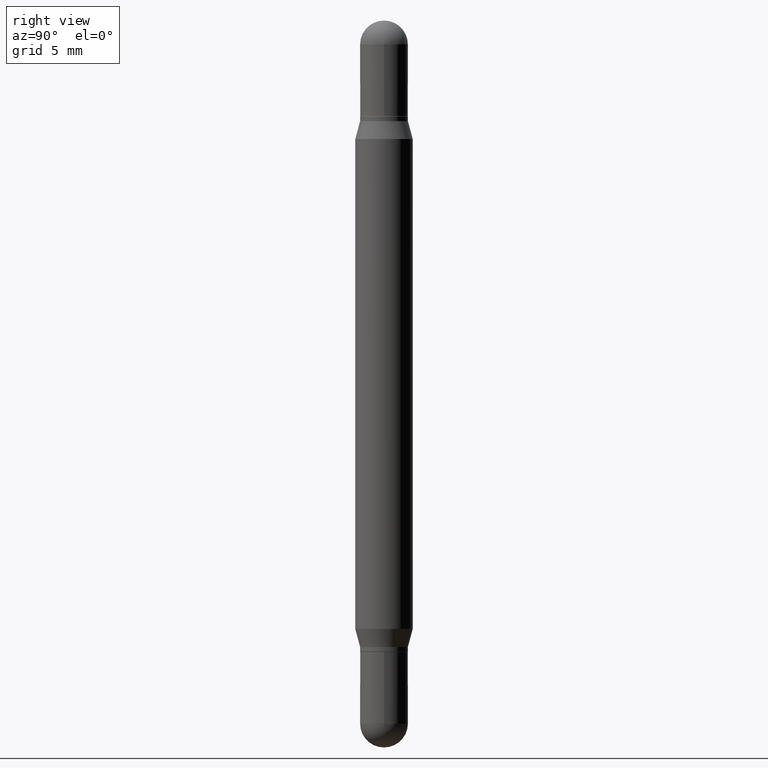
[diagram: clean part render]
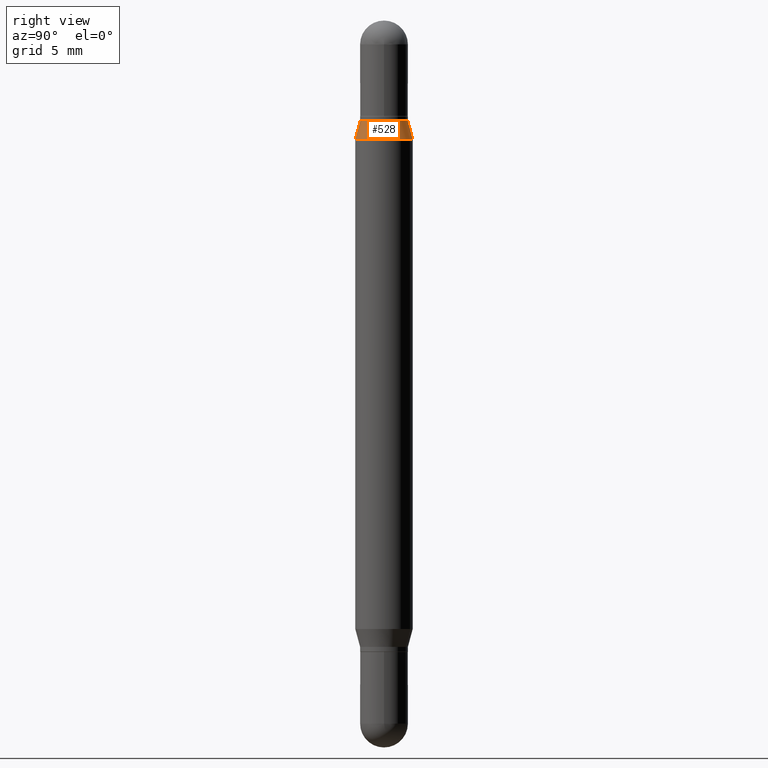
[diagram: same view with one face highlighted and labeled with its STEP entity id]
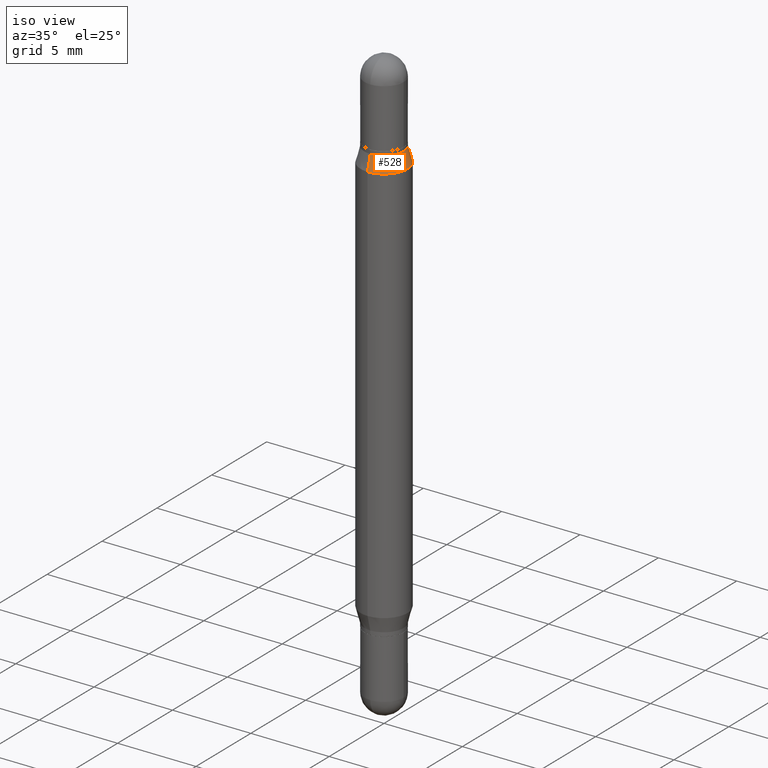
[diagram: same view with one face highlighted and labeled with its STEP entity id]
A machine part, right view. The second image highlights one B-rep face of the part: STEP entity #528.
A second angle (iso view) of the same face is appended — the face is thin or edge-on in the first view.
In plain terms, the highlighted conical surface has half-angle 15 deg.
Its self-contained STEP definition (entity closure, byte-faithful):
#35 = ORIENTED_EDGE ( 'NONE', *, *, #745, .T. ) ;
#50 = CARTESIAN_POINT ( 'NONE',  ( -3.435617637421321808E-16, -0.04920000000000063906, -0.2069999999999998230 ) ) ;
#53 = CIRCLE ( 'NONE', #654, 0.04919999999999991741 ) ;
#105 = CARTESIAN_POINT ( 'NONE',  ( 3.063020011328943986E-29, -8.564067733425325714E-16, -0.2437607004545535860 ) ) ;
#169 = LINE ( 'NONE', #682, #1084 ) ;
#170 = VERTEX_POINT ( 'NONE', #999 ) ;
#188 = VERTEX_POINT ( 'NONE', #379 ) ;
#201 = DIRECTION ( 'NONE',  ( 2.445838769445875239E-29, 3.480144275424207392E-15, 1.000000000000000000 ) ) ;
#264 = VERTEX_POINT ( 'NONE', #501 ) ;
#291 = DIRECTION ( 'NONE',  ( -2.445838769445875239E-29, -3.480144275424207392E-15, -1.000000000000000000 ) ) ;
#313 = CONICAL_SURFACE ( 'NONE', #938, 0.04919999999999991741, 0.2617993877991506291 ) ;
#315 = VECTOR ( 'NONE', #730, 39.37007874015748143 ) ;
#317 = LINE ( 'NONE', #50, #315 ) ;
#379 = CARTESIAN_POINT ( 'NONE',  ( -4.123439461173433657E-16, -0.05905000000000085181, -0.2437607004545533640 ) ) ;
#383 = DIRECTION ( 'NONE',  ( -6.982962677686266711E-15, -1.000000000000000000, 3.470335357805218124E-15 ) ) ;
#501 = CARTESIAN_POINT ( 'NONE',  ( 4.051124067684395352E-16, 0.05904999999999914484, -0.2437607004545537803 ) ) ;
#518 = EDGE_CURVE ( 'NONE', #737, #170, #53, .T. ) ;
#528 = ADVANCED_FACE ( 'NONE', ( #720 ), #313, .T. ) ;
#541 = DIRECTION ( 'NONE',  ( -6.982962677686265922E-15, -1.000000000000000000, 3.469747663417777397E-15 ) ) ;
#562 = CARTESIAN_POINT ( 'NONE',  ( -3.435617637421321808E-16, -0.04920000000000063906, -0.2069999999999998230 ) ) ;
#626 = DIRECTION ( 'NONE',  ( 2.445838769445875239E-29, 3.480144275424207392E-15, 1.000000000000000000 ) ) ;
#637 = DIRECTION ( 'NONE',  ( -6.982962677686266711E-15, -1.000000000000000000, 3.470335357805218124E-15 ) ) ;
#654 = AXIS2_PLACEMENT_3D ( 'NONE', #968, #201, #383 ) ;
#657 = ORIENTED_EDGE ( 'NONE', *, *, #1024, .T. ) ;
#682 = CARTESIAN_POINT ( 'NONE',  ( 3.375365014903902710E-16, 0.04919999999999918883, -0.2070000000000001839 ) ) ;
#720 = FACE_OUTER_BOUND ( 'NONE', #1073, .T. ) ;
#730 = DIRECTION ( 'NONE',  ( -1.807323732225332506E-15, -0.2588190451025252914, -0.9659258262890670910 ) ) ;
#737 = VERTEX_POINT ( 'NONE', #562 ) ;
#745 = EDGE_CURVE ( 'NONE', #737, #188, #317, .T. ) ;
#788 = ORIENTED_EDGE ( 'NONE', *, *, #849, .F. ) ;
#849 = EDGE_CURVE ( 'NONE', #170, #264, #169, .T. ) ;
#889 = ORIENTED_EDGE ( 'NONE', *, *, #518, .F. ) ;
#925 = AXIS2_PLACEMENT_3D ( 'NONE', #105, #626, #541 ) ;
#938 = AXIS2_PLACEMENT_3D ( 'NONE', #1063, #291, #637 ) ;
#968 = CARTESIAN_POINT ( 'NONE',  ( 3.152930757692677619E-29, -7.284742320950346152E-16, -0.2070000000000000173 ) ) ;
#994 = CIRCLE ( 'NONE', #925, 0.05904999999999999832 ) ;
#999 = CARTESIAN_POINT ( 'NONE',  ( 3.375365014903904189E-16, 0.04919999999999918883, -0.2070000000000001839 ) ) ;
#1017 = DIRECTION ( 'NONE',  ( 1.775627540710967469E-15, 0.2588190451025185190, -0.9659258262890689783 ) ) ;
#1024 = EDGE_CURVE ( 'NONE', #188, #264, #994, .T. ) ;
#1063 = CARTESIAN_POINT ( 'NONE',  ( 3.152930757692677619E-29, -7.284742320950346152E-16, -0.2070000000000000173 ) ) ;
#1073 = EDGE_LOOP ( 'NONE', ( #788, #889, #35, #657 ) ) ;
#1084 = VECTOR ( 'NONE', #1017, 39.37007874015748854 ) ;